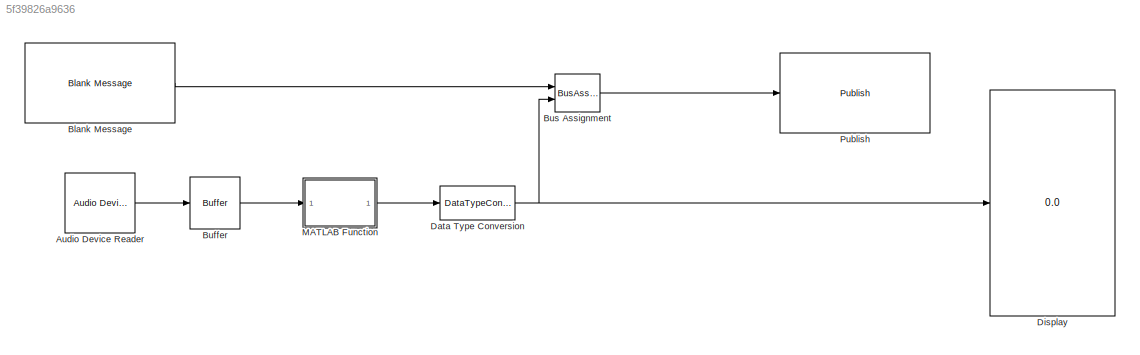
MODEL slx_5f39826a9636
KIND model
CONFIG AbsTol = auto
CONFIG EnableMultiTasking = off
CONFIG FixedStep = 0.1
CONFIG MaxStep = auto
CONFIG MinStep = auto
CONFIG RelTol = 1e-3
CONFIG SampleTimeConstraint = Unconstrained
CONFIG Solver = FixedStepAuto
CONFIG SolverName = FixedStepAuto
CONFIG StartTime = 0.0
CONFIG StopTime = inf
WORKSPACE source: mxarray member
WORKSPACE SL_ROS_VariableLengthArrays_MaxSizes: object (value not decoded)
BLOCK [Reference] Audio Device Reader  REF=audiosources/Audio Device
Reader
  Ports = [0, 1]
  SourceBlock = audiosources/Audio Device\nReader
  SourceProductBaseCode = AU
  SourceType = Audio Device Reader
BLOCK [Reference] Blank Message  REF=robotlib/Blank Message
  Ports = [0, 1]
  SourceBlock = robotlib/Blank Message
  SourceProductBaseCode = RR
  SourceType = ROS Blank Message
BLOCK [Buffer] Buffer
  N = 16000
  OutputFrames = off
BLOCK [BusAssignment] Bus Assignment
  AssignedSignals = Data
  Ports = [2, 1]
BLOCK [DataTypeConversion] Data Type Conversion
  OutDataTypeStr = single
  RndMeth = Floor
  SaturateOnIntegerOverflow = off
BLOCK [Display] Display
  Decimation = 1
  Ports = [1]
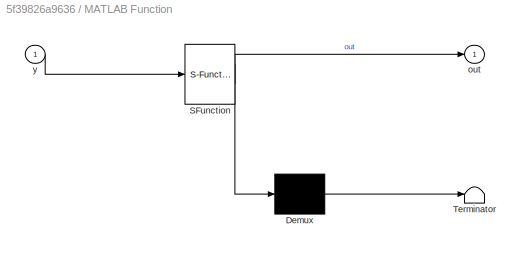
BLOCK [SubSystem] MATLAB Function
  ErrorFcn = Stateflow.Translate.translate
  PermitHierarchicalResolution = ExplicitOnly
  Ports = [1, 1]
  RequestExecContextInheritance = off
  SFBlockType = MATLAB Function
  TreatAsAtomicUnit = on
BLOCK [Demux] MATLAB Function/ Demux 
  Outputs = 1
  Ports = [1, 1]
BLOCK [S-Function] MATLAB Function/ SFunction 
  EnableBusSupport = on
  FunctionName = sf_sfun
  PortCounts = [1 2]
  Ports = [1, 2]
  SFcnIsStateOwnerBlock = off
  SFunctionDeploymentMode = off
  Tag = Stateflow S-Function 2
BLOCK [Terminator] MATLAB Function/ Terminator 
BLOCK [Outport] MATLAB Function/out
BLOCK [Inport] MATLAB Function/y
BLOCK [Reference] Publish  REF=robotlib/Publish
  Ports = [1]
  SourceBlock = robotlib/Publish
  SourceProductBaseCode = RR
  SourceType = ROS Publish
LINE Audio Device Reader:1 -> Buffer:1
LINE Blank Message:1 -> Bus Assignment:1
LINE Buffer:1 -> MATLAB Function:1
LINE Bus Assignment:1 -> Publish:1
NET Data Type Conversion:1 -> Bus Assignment:2, Display:1
LINE MATLAB Function:1 -> Data Type Conversion:1
note: NET lines group one-source signal fan-out (src -> all destinations, sorted); 1:1 wires keep LINE
CHART MATLAB Function states=1 transitions=1
  STATE_LABEL 'eML_blk_kernel()'
  STATE_LABEL "SCRIPT:\nfunction out = SECodegen(y)\n\nout = zeros(1,12);\n%out = cast(out,'single');\ntic\ncoder.extrinsic('SECodegen_mex');\n\nout = cast(SECodegen_mex(y),'double');\ntoc\n\nend\n\n"
CHART  states=0 transitions=0
